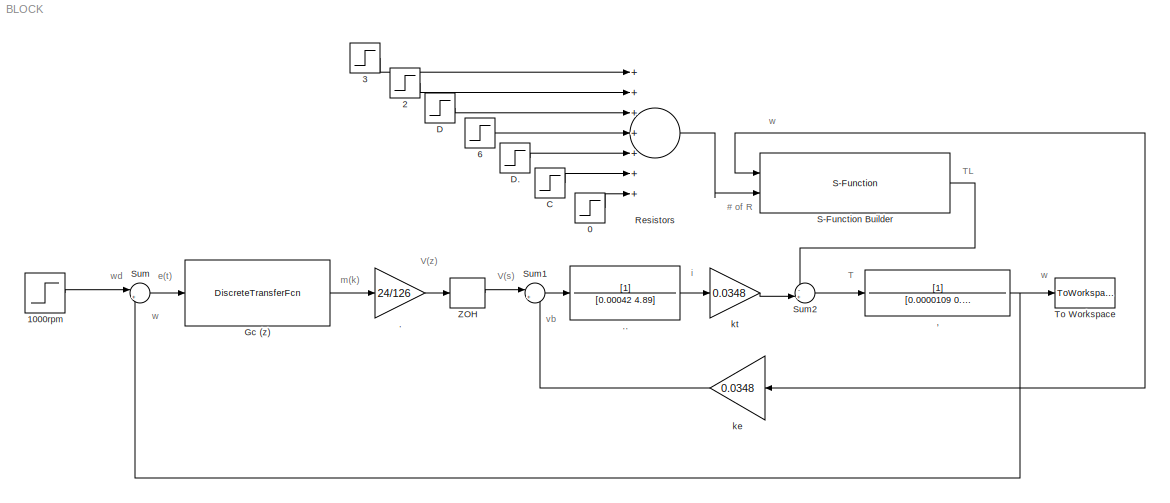
MODEL BLOCK
KIND model
BLOCK [TransferFcn] ,
  Denominator = [0.0000109 0.0000464]
  SID = 18
BLOCK [Gain] .
  Gain = 24/126
  OutDataTypeStr = Inherit: Inherit via internal rule
  ParamDataTypeStr = Inherit: Inherit via internal rule
  SID = 10
  SampleTime = 0.004
  SaturateOnIntegerOverflow = off
BLOCK [TransferFcn] ..
  Denominator = [0.00042 4.89]
  SID = 14
BLOCK [Step] 0
  After = -12
  SID = 76
  SampleTime = 0.004
  Time = 5.6
BLOCK [Step] 1000rpm
  After = 1000
  SID = 54
  SampleTime = 0.004
  Time = 0
BLOCK [Step] 2
  After = -1
  SID = 66
  SampleTime = 0.004
  Time = 1.6
BLOCK [Step] 3
  After = 3
  SID = 65
  SampleTime = 0.004
  Time = 0.8
BLOCK [Step] 6
  After = -7
  SID = 68
  SampleTime = 0.004
  Time = 3.2
BLOCK [Step] C
  After = -1
  SID = 70
  SampleTime = 0.004
  Time = 4.8
BLOCK [Step] D
  After = 11
  SID = 67
  SampleTime = 0.004
  Time = 2.4
BLOCK [Step] D.
  After = 7
  SID = 69
  SampleTime = 0.004
  Time = 4.0
BLOCK [DiscreteTransferFcn] Gc (z)
  Denominator = [1.005 -0.9580804 -0.0419195]
  InputPortMap = u0
  Numerator = [0.001 0.005 0]
  Ports = [1, 1]
  SID = 4
  SampleTime = 0.004
  Tag = z
BLOCK [Sum] Resistors
  InputSameDT = off
  Inputs = +++++++
  OutDataTypeStr = Inherit: Inherit via internal rule
  Ports = [7, 1]
  SID = 63
  SaturateOnIntegerOverflow = off
BLOCK [S-Function] S-Function Builder
  CopyFcn = set_param(gcbh,'LinkStatus','none')
  EnableBusSupport = off
  FunctionName = LoadSim
  InitFcn = try, set_param(gcb,'FunctionName','LoadSim'), end,
  MaskDisplay = plot(val(:,1),val(:,2)),disp(sys), port_label('input',1,'u0'), port_label('input',2,'u1'), port_label('output',1,'y0')
  MaskIconFrame = on
  MaskIconOpaque = on
  MaskIconRotate = none
  MaskIconUnits = normalized
  MaskInitialization = val = [[.9  0.75 0.75 1 1 .9 .9 1]',[1 1 0.75 0.75 .9 .9 1 .9]'];try , sys = get_param(gcb,'SfunBuilderFcnName');if isempty(sys), sys = get_param(gcb,'FunctionName'); end,catch, sys = get_param(gcb,'FunctionName'); end
  MaskPortRotate = default
  MaskType = S-Function Builder
  OpenFcn = sfunctionwizard(gcbh)
  Ports = [2, 1]
  PreSaveFcn = try, set_param(gcb,'FunctionName','LoadSim'), end
  SFunctionModules = LoadSim_wrapper
  SID = 75
  WizardData = DataTag0
BLOCK [Sum] Sum
  IconShape = round
  InputSameDT = off
  Inputs = |+-
  OutDataTypeStr = Inherit: Inherit via internal rule
  Ports = [2, 1]
  SID = 7
  SampleTime = 0.004
  SaturateOnIntegerOverflow = off
BLOCK [Sum] Sum1
  IconShape = round
  InputSameDT = off
  Inputs = |+-
  OutDataTypeStr = Inherit: Inherit via internal rule
  Ports = [2, 1]
  SID = 12
  SampleTime = 0.004
  SaturateOnIntegerOverflow = off
BLOCK [Sum] Sum2
  IconShape = round
  InputSameDT = off
  Inputs = -+|
  OutDataTypeStr = Inherit: Inherit via internal rule
  Ports = [2, 1]
  SID = 53
  SaturateOnIntegerOverflow = off
BLOCK [ToWorkspace] To Workspace
  MaxDataPoints = inf
  Ports = [1]
  SID = 19
  SampleTime = 0.004
  VariableName = simout
BLOCK [ZeroOrderHold] ZOH
  SID = 11
  SampleTime = 0.004
BLOCK [Gain] ke
  Gain = 0.0348
  OutDataTypeStr = Inherit: Inherit via internal rule
  ParamDataTypeStr = Inherit: Inherit via internal rule
  SID = 20
  SampleTime = 0.004
  SaturateOnIntegerOverflow = off
BLOCK [Gain] kt
  Gain = 0.0348
  OutDataTypeStr = Inherit: Inherit via internal rule
  ParamDataTypeStr = Inherit: Inherit via internal rule
  SID = 15
  SampleTime = 0.004
  SaturateOnIntegerOverflow = off
ANNOTATION (root): # of R
ANNOTATION (root): T
ANNOTATION (root): TL
ANNOTATION (root): V(s)
ANNOTATION (root): V(z)
ANNOTATION (root): e(t)
ANNOTATION (root): i
ANNOTATION (root): m(k)
ANNOTATION (root): vb
ANNOTATION (root): w
ANNOTATION (root): wd
NET ,:1 -> S-Function Builder:1, Sum:2, To Workspace:1, ke:1
LINE ..:1 -> kt:1
LINE .:1 -> ZOH:1
LINE 0:1 -> Resistors:7
LINE 1000rpm:1 -> Sum:1
LINE 2:1 -> Resistors:2
LINE 3:1 -> Resistors:1
LINE 6:1 -> Resistors:4
LINE C:1 -> Resistors:6
LINE D.:1 -> Resistors:5
LINE D:1 -> Resistors:3
LINE Gc (z):1 -> .:1
LINE Resistors:1 -> S-Function Builder:2
LINE S-Function Builder:1 -> Sum2:1
LINE Sum1:1 -> ..:1
LINE Sum2:1 -> ,:1
LINE Sum:1 -> Gc (z):1
LINE ZOH:1 -> Sum1:1
LINE ke:1 -> Sum1:2
LINE kt:1 -> Sum2:2
note: NET lines group one-source signal fan-out (src -> all destinations, sorted); 1:1 wires keep LINE
